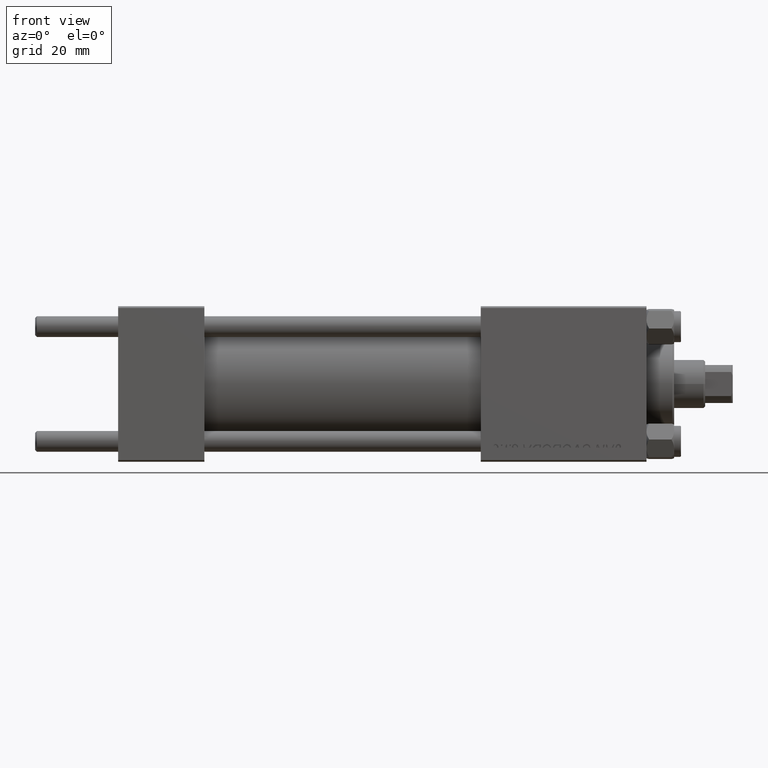
[diagram: clean part render]
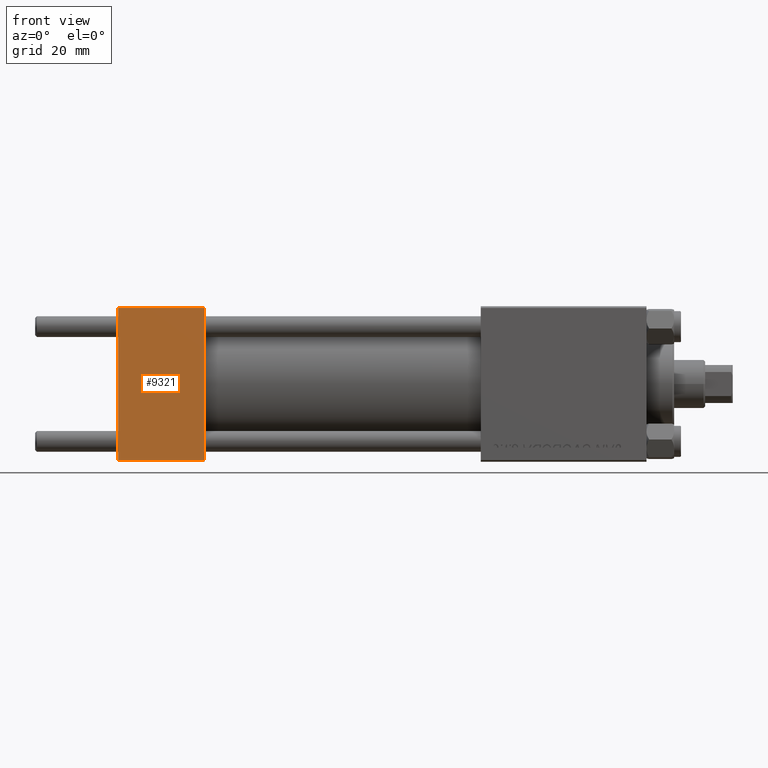
[diagram: same view with one face highlighted and labeled with its STEP entity id]
A machine part, front view. The second image highlights one B-rep face of the part: STEP entity #9321.
In plain terms, the highlighted planar face has unit normal (0, 1, 0).
Its self-contained STEP definition (entity closure, byte-faithful):
#710 = ORIENTED_EDGE ( 'NONE', *, *, #6062, .T. ) ;
#1125 = CARTESIAN_POINT ( 'NONE',  ( 0.000000000000000000, -22.50000000000000000, 22.50000000000000000 ) ) ;
#2261 = CARTESIAN_POINT ( 'NONE',  ( 25.00000000000000000, -22.50000000000000000, 22.00000000000000000 ) ) ;
#4599 = VECTOR ( 'NONE', #17259, 1000.000000000000000 ) ;
#4738 = VECTOR ( 'NONE', #30548, 1000.000000000000000 ) ;
#5230 = CARTESIAN_POINT ( 'NONE',  ( 0.000000000000000000, -22.50000000000000000, -21.99999999999997158 ) ) ;
#5943 = DIRECTION ( 'NONE',  ( 0.000000000000000000, -0.000000000000000000, 1.000000000000000000 ) ) ;
#6038 = CARTESIAN_POINT ( 'NONE',  ( 0.000000000000000000, -22.50000000000000000, 22.00000000000000000 ) ) ;
#6062 = EDGE_CURVE ( 'NONE', #24361, #24614, #48356, .T. ) ;
#9115 = VECTOR ( 'NONE', #21947, 1000.000000000000000 ) ;
#9321 = ADVANCED_FACE ( 'NONE', ( #40825 ), #25899, .F. ) ;
#9599 = LINE ( 'NONE', #41427, #9115 ) ;
#10723 = DIRECTION ( 'NONE',  ( -0.000000000000000000, 1.000000000000000000, 0.000000000000000000 ) ) ;
#13475 = CARTESIAN_POINT ( 'NONE',  ( 25.00000000000000000, -22.50000000000000000, -21.99999999999998579 ) ) ;
#14382 = EDGE_CURVE ( 'NONE', #15968, #24361, #38882, .T. ) ;
#14463 = LINE ( 'NONE', #13475, #4599 ) ;
#15968 = VERTEX_POINT ( 'NONE', #2261 ) ;
#17259 = DIRECTION ( 'NONE',  ( 1.000000000000000000, 0.000000000000000000, 0.000000000000000000 ) ) ;
#21947 = DIRECTION ( 'NONE',  ( 0.000000000000000000, 0.000000000000000000, -1.000000000000000000 ) ) ;
#24361 = VERTEX_POINT ( 'NONE', #6038 ) ;
#24614 = VERTEX_POINT ( 'NONE', #5230 ) ;
#25899 = PLANE ( 'NONE',  #30393 ) ;
#27902 = EDGE_CURVE ( 'NONE', #15968, #33228, #9599, .T. ) ;
#28043 = EDGE_LOOP ( 'NONE', ( #710, #33204, #31940, #35356 ) ) ;
#30393 = AXIS2_PLACEMENT_3D ( 'NONE', #45128, #10723, #5943 ) ;
#30548 = DIRECTION ( 'NONE',  ( -1.000000000000000000, 0.000000000000000000, 0.000000000000000000 ) ) ;
#31529 = CARTESIAN_POINT ( 'NONE',  ( 25.00000000000000000, -22.50000000000000000, -21.99999999999997158 ) ) ;
#31940 = ORIENTED_EDGE ( 'NONE', *, *, #27902, .F. ) ;
#33204 = ORIENTED_EDGE ( 'NONE', *, *, #49171, .T. ) ;
#33228 = VERTEX_POINT ( 'NONE', #31529 ) ;
#35356 = ORIENTED_EDGE ( 'NONE', *, *, #14382, .T. ) ;
#37890 = CARTESIAN_POINT ( 'NONE',  ( 25.00000000000000000, -22.50000000000000000, 22.00000000000000000 ) ) ;
#38371 = VECTOR ( 'NONE', #39308, 1000.000000000000000 ) ;
#38882 = LINE ( 'NONE', #37890, #4738 ) ;
#39308 = DIRECTION ( 'NONE',  ( 0.000000000000000000, 0.000000000000000000, -1.000000000000000000 ) ) ;
#40825 = FACE_OUTER_BOUND ( 'NONE', #28043, .T. ) ;
#41427 = CARTESIAN_POINT ( 'NONE',  ( 25.00000000000000000, -22.50000000000000000, 22.50000000000000000 ) ) ;
#45128 = CARTESIAN_POINT ( 'NONE',  ( 25.00000000000000000, -22.50000000000000000, 22.50000000000000000 ) ) ;
#48356 = LINE ( 'NONE', #1125, #38371 ) ;
#49171 = EDGE_CURVE ( 'NONE', #24614, #33228, #14463, .T. ) ;